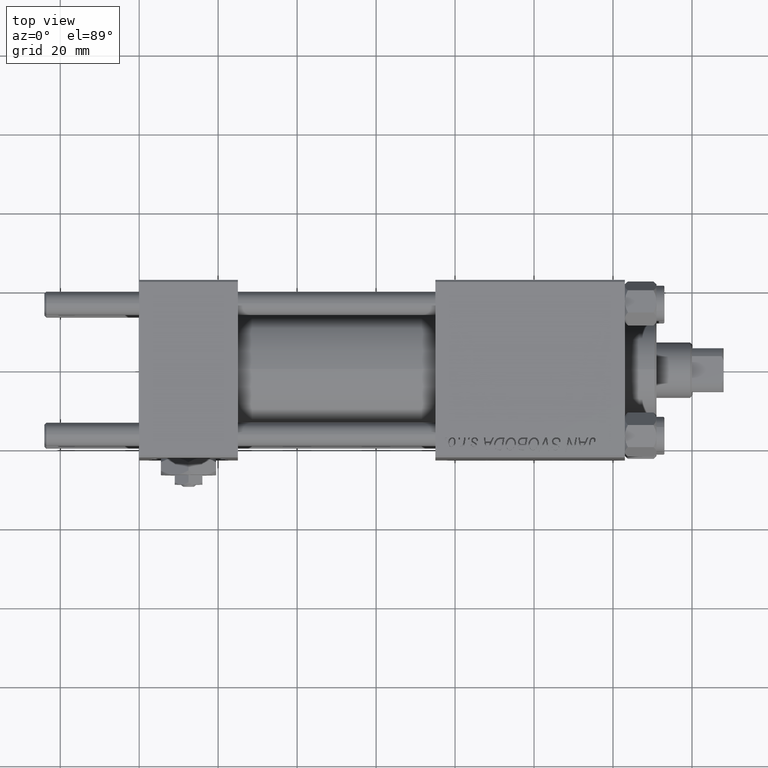
[diagram: clean part render]
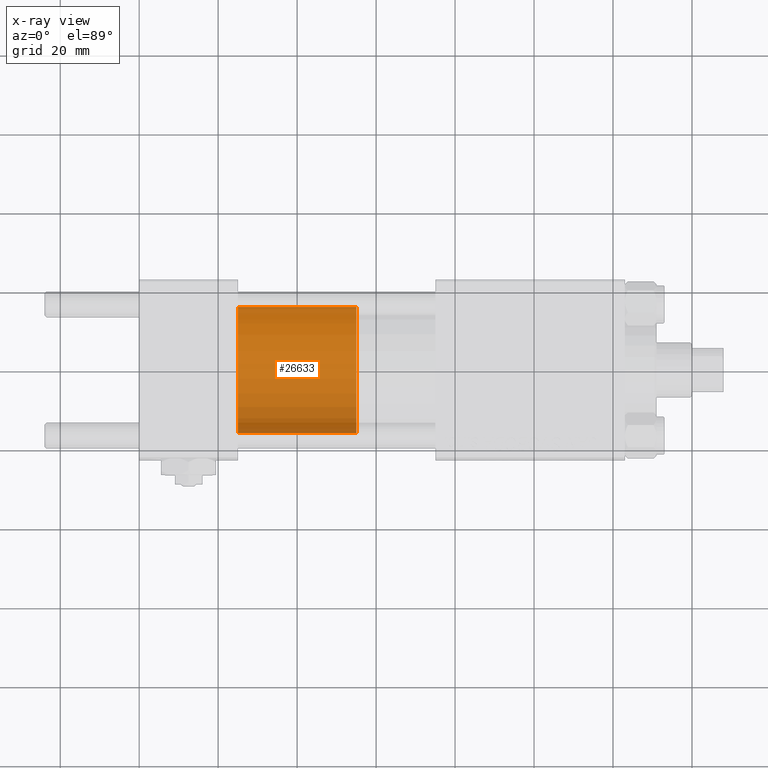
[diagram: x-ray — body ghosted, one internal face saturated and labeled with its STEP entity id]
A machine part, top view, then the same camera in x-ray: the body is ghosted and one INTERNAL B-rep face — a face not visible from any outside direction — is saturated and labeled: STEP entity #26633.
In plain terms, the highlighted cylindrical surface (partial cylindrical patch) has radius 16 mm, axis along (-1, 0, 0).
Its self-contained STEP definition (entity closure, byte-faithful):
#1016 = VECTOR ( 'NONE', #40715, 1000.000000000000000 ) ;
#1192 = EDGE_LOOP ( 'NONE', ( #21220, #37814, #30243, #28385 ) ) ;
#1438 = DIRECTION ( 'NONE',  ( 0.000000000000000000, 0.000000000000000000, 1.000000000000000000 ) ) ;
#1644 = AXIS2_PLACEMENT_3D ( 'NONE', #38939, #27163, #43105 ) ;
#5481 = DIRECTION ( 'NONE',  ( -0.000000000000000000, -0.000000000000000000, -1.000000000000000000 ) ) ;
#5735 = FACE_OUTER_BOUND ( 'NONE', #1192, .T. ) ;
#8178 = AXIS2_PLACEMENT_3D ( 'NONE', #21557, #1438, #21299 ) ;
#8828 = LINE ( 'NONE', #24774, #1016 ) ;
#13652 = EDGE_CURVE ( 'NONE', #50008, #29178, #8828, .T. ) ;
#20940 = CARTESIAN_POINT ( 'NONE',  ( 16.00000000000000000, 1.959434878635765131E-15, 30.00000000000000000 ) ) ;
#21220 = ORIENTED_EDGE ( 'NONE', *, *, #50434, .F. ) ;
#21299 = DIRECTION ( 'NONE',  ( 1.000000000000000000, 0.000000000000000000, 0.000000000000000000 ) ) ;
#21557 = CARTESIAN_POINT ( 'NONE',  ( 0.000000000000000000, 0.000000000000000000, 0.000000000000000000 ) ) ;
#24178 = CIRCLE ( 'NONE', #1644, 16.00000000000000000 ) ;
#24774 = CARTESIAN_POINT ( 'NONE',  ( -16.00000000000000000, 0.000000000000000000, 30.00000000000000000 ) ) ;
#25596 = DIRECTION ( 'NONE',  ( -1.000000000000000000, 0.000000000000000000, 0.000000000000000000 ) ) ;
#26357 = CARTESIAN_POINT ( 'NONE',  ( -16.00000000000000000, 0.000000000000000000, 0.000000000000000000 ) ) ;
#26633 = ADVANCED_FACE ( 'NONE', ( #5735 ), #29272, .T. ) ;
#27163 = DIRECTION ( 'NONE',  ( 0.000000000000000000, 0.000000000000000000, 1.000000000000000000 ) ) ;
#27884 = CARTESIAN_POINT ( 'NONE',  ( -16.00000000000000000, 0.000000000000000000, 30.00000000000000000 ) ) ;
#28385 = ORIENTED_EDGE ( 'NONE', *, *, #13652, .F. ) ;
#29178 = VERTEX_POINT ( 'NONE', #26357 ) ;
#29272 = CYLINDRICAL_SURFACE ( 'NONE', #35590, 16.00000000000000000 ) ;
#30243 = ORIENTED_EDGE ( 'NONE', *, *, #45681, .T. ) ;
#30717 = CIRCLE ( 'NONE', #8178, 16.00000000000000000 ) ;
#31267 = CARTESIAN_POINT ( 'NONE',  ( 16.00000000000000000, 1.959434878635765131E-15, 30.00000000000000000 ) ) ;
#31495 = VECTOR ( 'NONE', #48888, 1000.000000000000000 ) ;
#35590 = AXIS2_PLACEMENT_3D ( 'NONE', #45193, #5481, #25596 ) ;
#37814 = ORIENTED_EDGE ( 'NONE', *, *, #44322, .T. ) ;
#38939 = CARTESIAN_POINT ( 'NONE',  ( 0.000000000000000000, 0.000000000000000000, 30.00000000000000000 ) ) ;
#40715 = DIRECTION ( 'NONE',  ( -0.000000000000000000, -0.000000000000000000, -1.000000000000000000 ) ) ;
#43105 = DIRECTION ( 'NONE',  ( 1.000000000000000000, 0.000000000000000000, 0.000000000000000000 ) ) ;
#43815 = CARTESIAN_POINT ( 'NONE',  ( 16.00000000000000000, 1.959434878635765131E-15, 0.000000000000000000 ) ) ;
#44322 = EDGE_CURVE ( 'NONE', #49482, #50015, #49655, .T. ) ;
#45193 = CARTESIAN_POINT ( 'NONE',  ( 0.000000000000000000, 0.000000000000000000, 30.00000000000000000 ) ) ;
#45681 = EDGE_CURVE ( 'NONE', #50015, #29178, #30717, .T. ) ;
#48888 = DIRECTION ( 'NONE',  ( -0.000000000000000000, -0.000000000000000000, -1.000000000000000000 ) ) ;
#49482 = VERTEX_POINT ( 'NONE', #31267 ) ;
#49655 = LINE ( 'NONE', #20940, #31495 ) ;
#50008 = VERTEX_POINT ( 'NONE', #27884 ) ;
#50015 = VERTEX_POINT ( 'NONE', #43815 ) ;
#50434 = EDGE_CURVE ( 'NONE', #49482, #50008, #24178, .T. ) ;